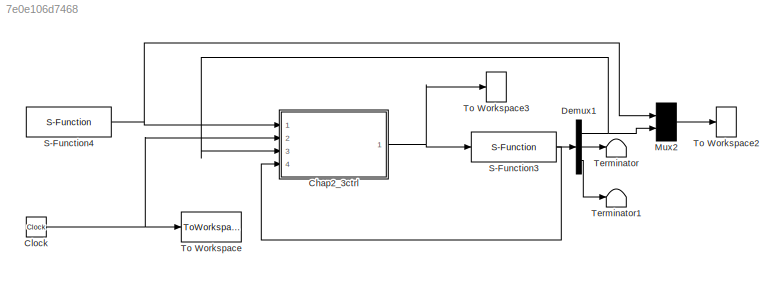
MODEL slx_7e0e106d7468
KIND model
CONFIG AbsTol = auto
CONFIG FixedStep = 0.01
CONFIG MaxStep = auto
CONFIG MinStep = auto
CONFIG RelTol = 1e-3
CONFIG SampleTimeConstraint = Unconstrained
CONFIG Solver = ode3
CONFIG SolverMode = Auto
CONFIG SolverName = ode3
CONFIG StartTime = 0.0
CONFIG StopTime = RunTime
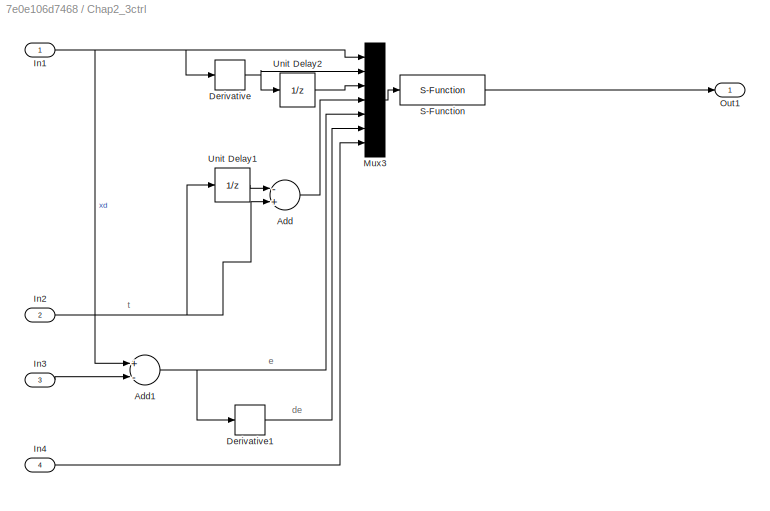
BLOCK [SubSystem] Chap2_3ctrl
  Ports = [4, 1]
  RequestExecContextInheritance = off
BLOCK [Sum] Chap2_3ctrl/Add
  InputSameDT = off
  Inputs = -+
  OutDataTypeStr = Inherit: Inherit via internal rule
  Ports = [2, 1]
  SaturateOnIntegerOverflow = off
BLOCK [Sum] Chap2_3ctrl/Add1
  InputSameDT = off
  Inputs = +-
  OutDataTypeStr = Inherit: Inherit via internal rule
  Ports = [2, 1]
  SaturateOnIntegerOverflow = off
BLOCK [Derivative] Chap2_3ctrl/Derivative
BLOCK [Derivative] Chap2_3ctrl/Derivative1
BLOCK [Inport] Chap2_3ctrl/In1
  IconDisplay = Port number
BLOCK [Inport] Chap2_3ctrl/In2
  IconDisplay = Port number
  Port = 2
BLOCK [Inport] Chap2_3ctrl/In3
  IconDisplay = Port number
  Port = 3
BLOCK [Inport] Chap2_3ctrl/In4
  IconDisplay = Port number
  Port = 4
BLOCK [Mux] Chap2_3ctrl/Mux3
  DisplayOption = bar
  Inputs = 7
  Ports = [7, 1]
BLOCK [Outport] Chap2_3ctrl/Out1
  IconDisplay = Port number
BLOCK [S-Function] Chap2_3ctrl/S-Function
  FunctionName = chap2_3ctrl
  Ports = [1, 1]
  SFunctionModules = 'chap2_3ctrl'
BLOCK [UnitDelay] Chap2_3ctrl/Unit Delay1
  InputProcessing = Elements as channels (sample based)
  SampleTime = -1
BLOCK [UnitDelay] Chap2_3ctrl/Unit Delay2
  InputProcessing = Elements as channels (sample based)
  SampleTime = -1
BLOCK [Clock] Clock
BLOCK [Demux] Demux1
  DisplayOption = bar
  Outputs = 3
  Ports = [1, 3]
BLOCK [Mux] Mux2
  Inputs = 2
  Ports = [2, 1]
BLOCK [S-Function] S-Function3
  FunctionName = chap2_3plant
  Ports = [1, 1]
  SFunctionModules = 'chap2_3plant'
BLOCK [S-Function] S-Function4
  FunctionName = chap2_3input
  Ports = [0, 1]
  SFunctionModules = 'chap2_3input'
BLOCK [Terminator] Terminator
BLOCK [Terminator] Terminator1
BLOCK [ToWorkspace] To Workspace
  FixptAsFi = on
  MaxDataPoints = inf
  Ports = [1]
  SampleTime = -1
  Save2DSignal = 3-D array (concatenate along third dimension)
  VariableName = t
BLOCK [ToWorkspace] To Workspace2
  FixptAsFi = on
  MaxDataPoints = inf
  Ports = [1]
  SampleTime = -1
  Save2DSignal = 3-D array (concatenate along third dimension)
  VariableName = y
BLOCK [ToWorkspace] To Workspace3
  FixptAsFi = on
  MaxDataPoints = inf
  Ports = [1]
  SampleTime = -1
  Save2DSignal = 3-D array (concatenate along third dimension)
  VariableName = ut
ANNOTATION Chap2_3ctrl: de
ANNOTATION Chap2_3ctrl: e
ANNOTATION Chap2_3ctrl: t
NET Chap2_3ctrl/Add1:1 -> Chap2_3ctrl/Derivative1:1, Chap2_3ctrl/Mux3:5
LINE Chap2_3ctrl/Add:1 -> Chap2_3ctrl/Mux3:4
LINE Chap2_3ctrl/Derivative1:1 -> Chap2_3ctrl/Mux3:6
NET Chap2_3ctrl/Derivative:1 -> Chap2_3ctrl/Mux3:2, Chap2_3ctrl/Unit Delay2:1
NET Chap2_3ctrl/In1:1 -> Chap2_3ctrl/Add1:1, Chap2_3ctrl/Derivative:1, Chap2_3ctrl/Mux3:1
NET Chap2_3ctrl/In2:1 -> Chap2_3ctrl/Add:2, Chap2_3ctrl/Unit Delay1:1
LINE Chap2_3ctrl/In3:1 -> Chap2_3ctrl/Add1:2
LINE Chap2_3ctrl/In4:1 -> Chap2_3ctrl/Mux3:7
LINE Chap2_3ctrl/Mux3:1 -> Chap2_3ctrl/S-Function:1
LINE Chap2_3ctrl/S-Function:1 -> Chap2_3ctrl/Out1:1
LINE Chap2_3ctrl/Unit Delay1:1 -> Chap2_3ctrl/Add:1
LINE Chap2_3ctrl/Unit Delay2:1 -> Chap2_3ctrl/Mux3:3
NET Chap2_3ctrl:1 -> S-Function3:1, To Workspace3:1
NET Clock:1 -> Chap2_3ctrl:2, To Workspace:1
NET Demux1:1 -> Chap2_3ctrl:3, Mux2:2
LINE Demux1:2 -> Terminator:1
LINE Demux1:3 -> Terminator1:1
LINE Mux2:1 -> To Workspace2:1
NET S-Function3:1 -> Chap2_3ctrl:4, Demux1:1
NET S-Function4:1 -> Chap2_3ctrl:1, Mux2:1
note: NET lines group one-source signal fan-out (src -> all destinations, sorted); 1:1 wires keep LINE
